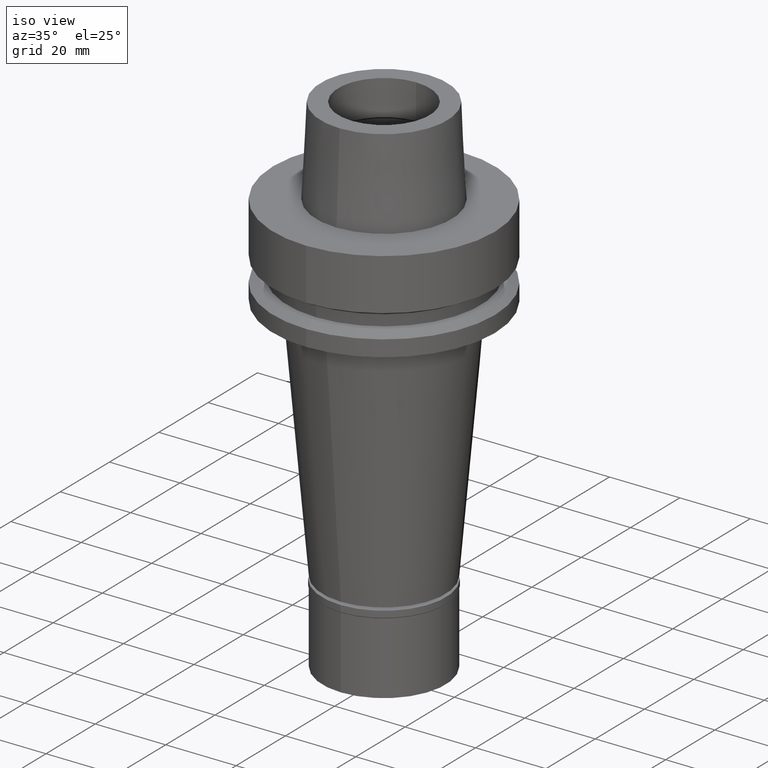
[diagram: clean part render]
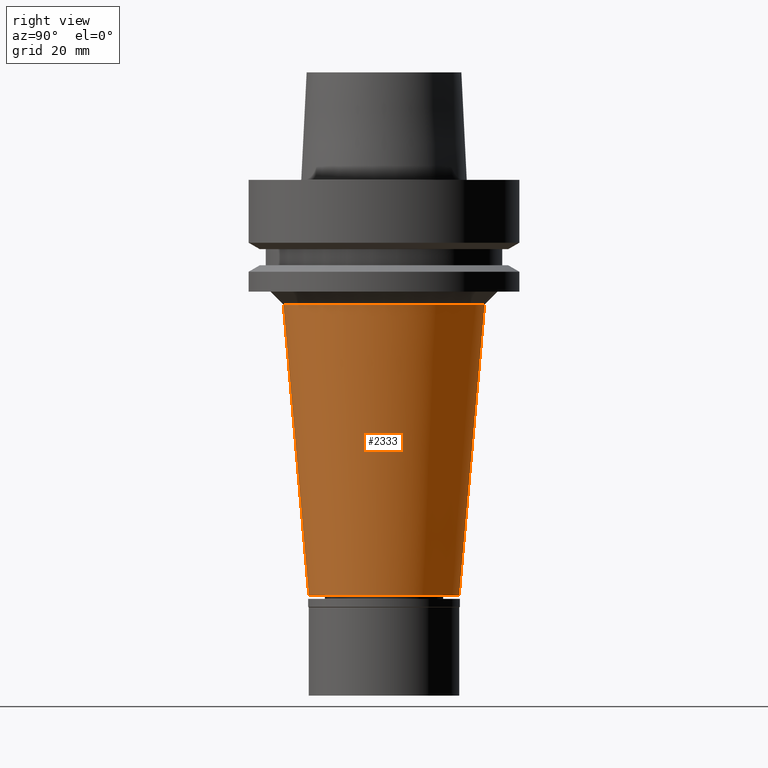
[diagram: tour spotlight — one face highlighted and labeled with its STEP entity id]
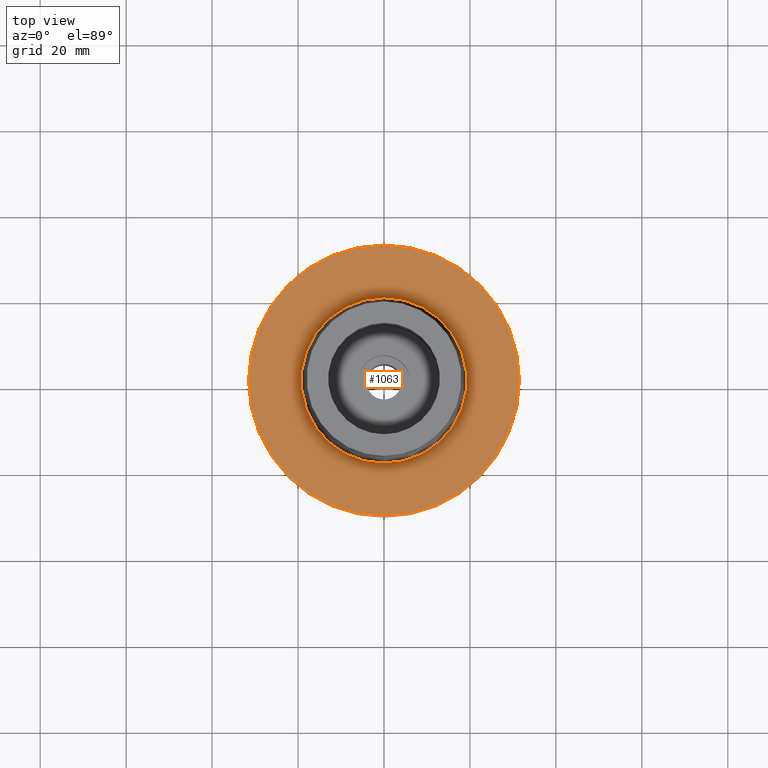
[diagram: tour spotlight — one face highlighted and labeled with its STEP entity id]
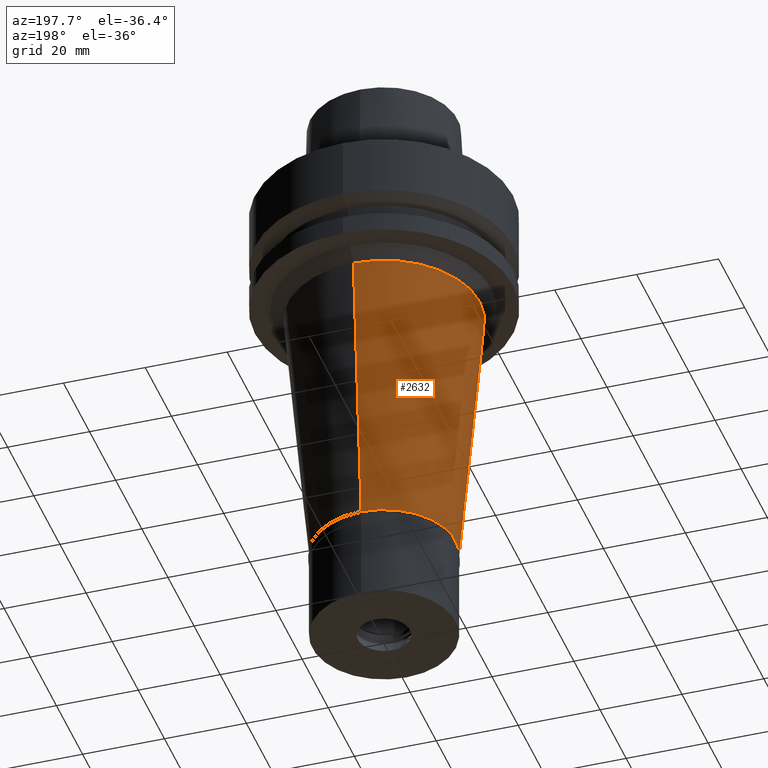
[diagram: tour spotlight — one face highlighted and labeled with its STEP entity id]
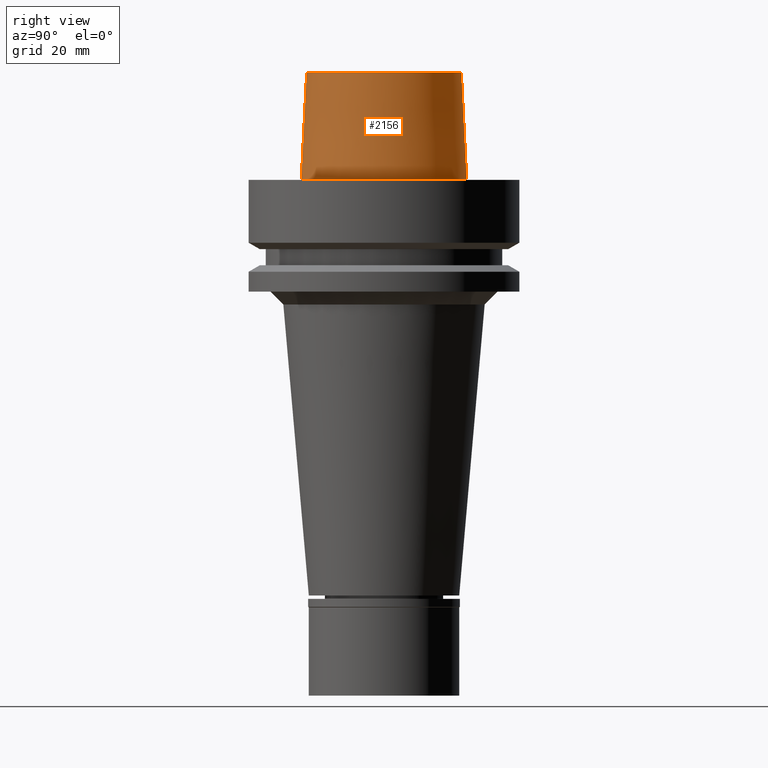
[diagram: tour spotlight — one face highlighted and labeled with its STEP entity id]
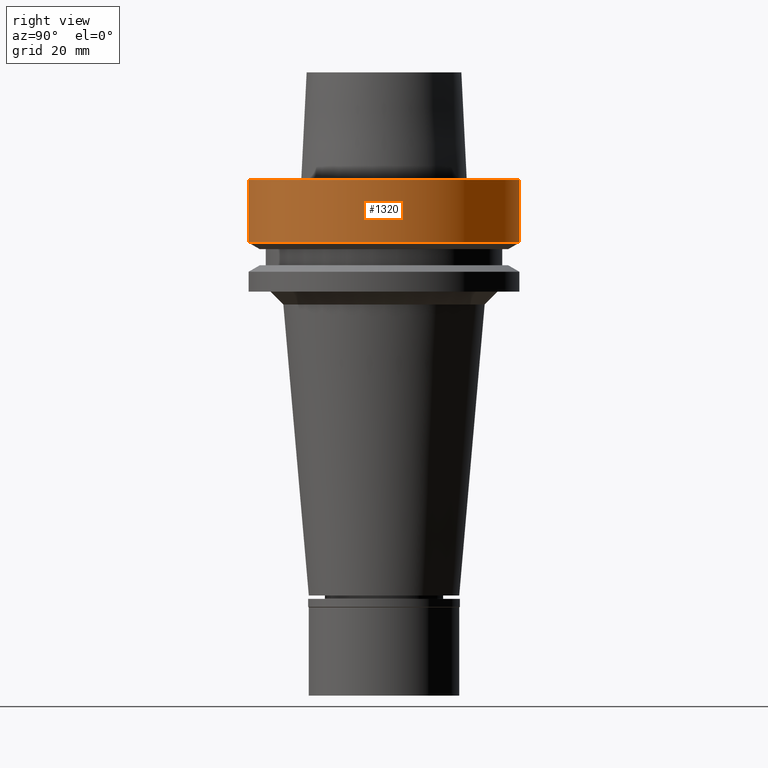
[diagram: tour spotlight — one face highlighted and labeled with its STEP entity id]
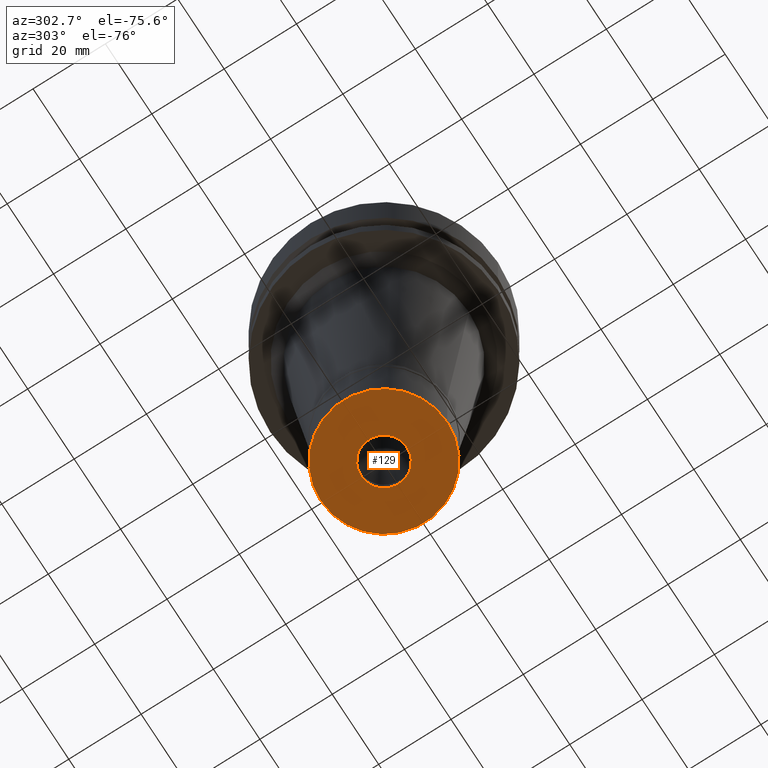
[diagram: tour spotlight — one face highlighted and labeled with its STEP entity id]
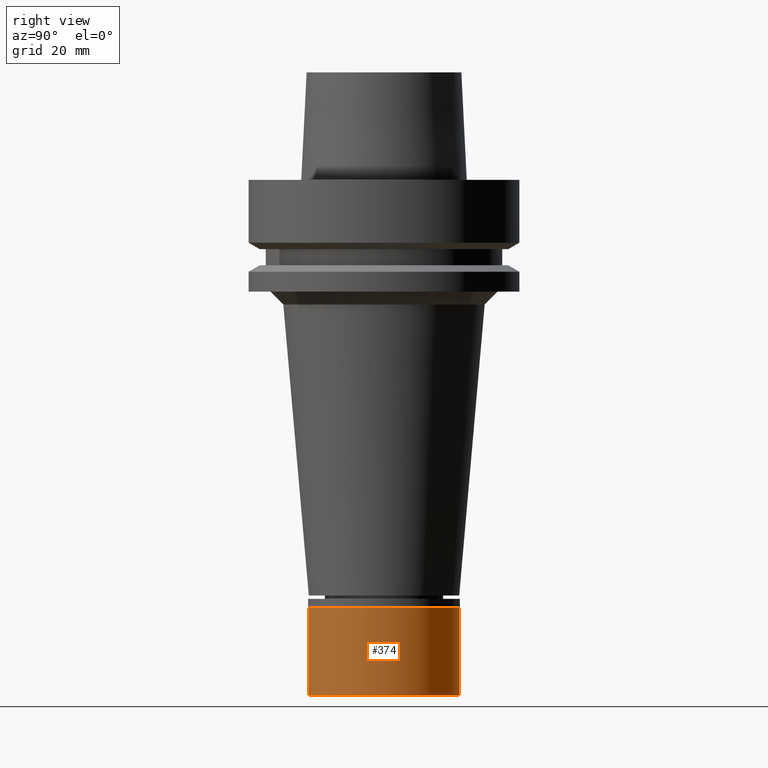
[diagram: tour spotlight — one face highlighted and labeled with its STEP entity id]
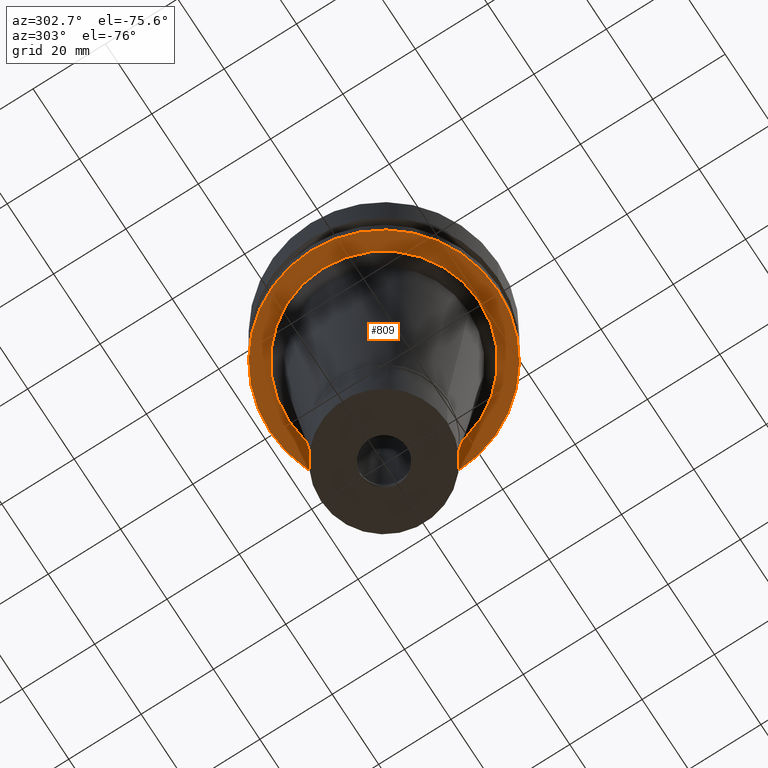
[diagram: tour spotlight — one face highlighted and labeled with its STEP entity id]
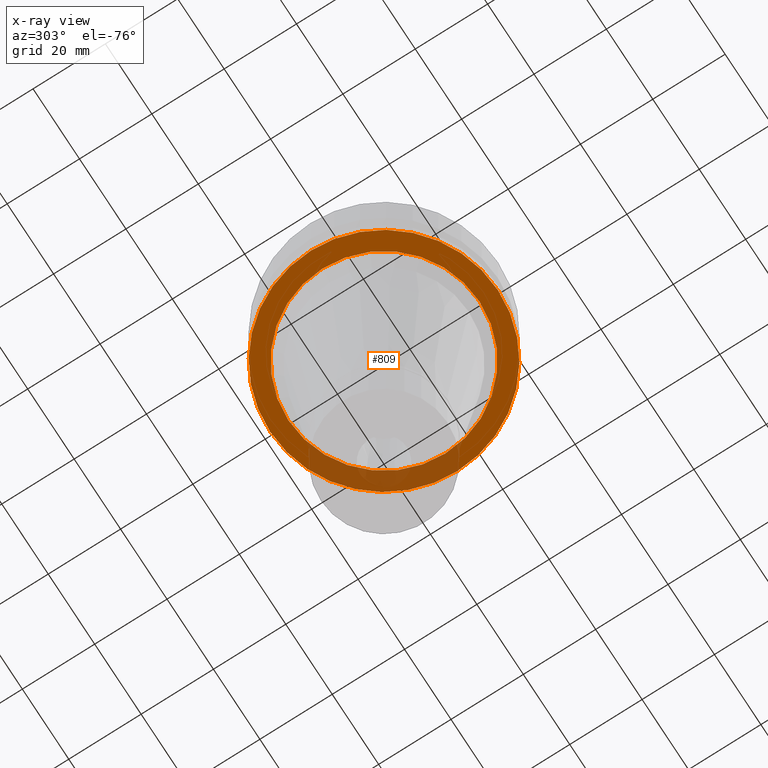
[diagram: x-ray of the same camera — body ghosted, this tour face saturated]
A machine part: a face-by-face anatomy tour. The part has 81 B-rep faces; the first image is the clean iso view, then the 8 largest visible faces are spotlighted one at a time (largest first), each with its STEP entity span.

Face 1 — right view, entity #2333. In plain terms, the highlighted conical surface has half-angle 5 deg.
Definition (entity closure, byte-faithful):
#21 = LINE ( 'NONE', #2617, #2186 ) ;
#22 = EDGE_CURVE ( 'NONE', #2372, #1533, #21, .T. ) ;
#80 = CARTESIAN_POINT ( 'NONE',  ( 0.0000000000000000000, 0.0000000000000000000, -62.85000000000000142 ) ) ;
#94 = CARTESIAN_POINT ( 'NONE',  ( 0.0000000000000000000, 0.0000000000000000000, -96.69999999999998863 ) ) ;
#110 = AXIS2_PLACEMENT_3D ( 'NONE', #2450, #1156, #1138 ) ;
#203 = EDGE_CURVE ( 'NONE', #1725, #1533, #720, .T. ) ;
#215 = ORIENTED_EDGE ( 'NONE', *, *, #1965, .T. ) ;
#283 = VERTEX_POINT ( 'NONE', #827 ) ;
#467 = CARTESIAN_POINT ( 'NONE',  ( 0.0000000000000000000, 23.42298252071000064, -29.00000000000000000 ) ) ;
#720 = CIRCLE ( 'NONE', #2335, 17.50000000000000000 ) ;
#777 = CARTESIAN_POINT ( 'NONE',  ( 0.0000000000000000000, -23.42298252071000064, -29.00000000000000000 ) ) ;
#816 = AXIS2_PLACEMENT_3D ( 'NONE', #80, #1376, #1821 ) ;
#827 = CARTESIAN_POINT ( 'NONE',  ( 0.0000000000000000000, -23.42298252071000064, -29.00000000000000000 ) ) ;
#1138 = DIRECTION ( 'NONE',  ( 0.0000000000000000000, -1.000000000000000000, 0.0000000000000000000 ) ) ;
#1156 = DIRECTION ( 'NONE',  ( 0.0000000000000000000, 0.0000000000000000000, 1.000000000000000000 ) ) ;
#1274 = EDGE_CURVE ( 'NONE', #283, #2372, #1867, .T. ) ;
#1322 = VECTOR ( 'NONE', #1898, 1000.000000000000000 ) ;
#1376 = DIRECTION ( 'NONE',  ( 0.0000000000000000000, 0.0000000000000000000, 1.000000000000000000 ) ) ;
#1447 = LINE ( 'NONE', #777, #1322 ) ;
#1483 = EDGE_LOOP ( 'NONE', ( #2423, #215, #2651, #2689 ) ) ;
#1521 = DIRECTION ( 'NONE',  ( 0.0000000000000000000, -0.08715574274770356011, -0.9961946980917415484 ) ) ;
#1533 = VERTEX_POINT ( 'NONE', #2726 ) ;
#1725 = VERTEX_POINT ( 'NONE', #1772 ) ;
#1772 = CARTESIAN_POINT ( 'NONE',  ( 0.0000000000000000000, -17.50000000000000000, -96.69999999999998863 ) ) ;
#1821 = DIRECTION ( 'NONE',  ( 0.0000000000000000000, 1.000000000000000000, 0.0000000000000000000 ) ) ;
#1859 = DIRECTION ( 'NONE',  ( 0.0000000000000000000, 0.0000000000000000000, 1.000000000000000000 ) ) ;
#1867 = CIRCLE ( 'NONE', #110, 23.42298252070000331 ) ;
#1898 = DIRECTION ( 'NONE',  ( 0.0000000000000000000, 0.08715574274770356011, -0.9961946980917415484 ) ) ;
#1965 = EDGE_CURVE ( 'NONE', #283, #1725, #1447, .T. ) ;
#2079 = DIRECTION ( 'NONE',  ( 0.0000000000000000000, -1.000000000000000000, 0.0000000000000000000 ) ) ;
#2186 = VECTOR ( 'NONE', #1521, 1000.000000000000000 ) ;
#2333 = ADVANCED_FACE ( 'NONE', ( #2664 ), #2746, .T. ) ;
#2335 = AXIS2_PLACEMENT_3D ( 'NONE', #94, #1859, #2079 ) ;
#2372 = VERTEX_POINT ( 'NONE', #467 ) ;
#2423 = ORIENTED_EDGE ( 'NONE', *, *, #1274, .F. ) ;
#2450 = CARTESIAN_POINT ( 'NONE',  ( 0.0000000000000000000, 0.0000000000000000000, -29.00000000000000000 ) ) ;
#2617 = CARTESIAN_POINT ( 'NONE',  ( 0.0000000000000000000, 23.42298252071000064, -29.00000000000000000 ) ) ;
#2651 = ORIENTED_EDGE ( 'NONE', *, *, #203, .T. ) ;
#2664 = FACE_OUTER_BOUND ( 'NONE', #1483, .T. ) ;
#2689 = ORIENTED_EDGE ( 'NONE', *, *, #22, .F. ) ;
#2726 = CARTESIAN_POINT ( 'NONE',  ( 0.0000000000000000000, 17.50000000000000000, -96.69999999999998863 ) ) ;
#2746 = CONICAL_SURFACE ( 'NONE', #816, 20.46149126035000165, 0.08726646259969973729 ) ;

Face 2 — top view, entity #1063. In plain terms, the highlighted planar face has unit normal (0, 0, 1).
Definition (entity closure, byte-faithful):
#51 = CIRCLE ( 'NONE', #2171, 19.24999954280000125 ) ;
#78 = CIRCLE ( 'NONE', #2339, 31.50000000000000000 ) ;
#226 = DIRECTION ( 'NONE',  ( 0.0000000000000000000, -1.000000000000000000, 0.0000000000000000000 ) ) ;
#269 = PLANE ( 'NONE',  #665 ) ;
#352 = CARTESIAN_POINT ( 'NONE',  ( 0.0000000000000000000, 0.0000000000000000000, 5.115907697473000027E-13 ) ) ;
#369 = EDGE_CURVE ( 'NONE', #2047, #2534, #2807, .T. ) ;
#431 = EDGE_CURVE ( 'NONE', #2534, #2047, #78, .T. ) ;
#443 = DIRECTION ( 'NONE',  ( 0.0000000000000000000, -1.000000000000000000, 0.0000000000000000000 ) ) ;
#464 = VERTEX_POINT ( 'NONE', #2308 ) ;
#501 = EDGE_CURVE ( 'NONE', #2710, #464, #1934, .T. ) ;
#547 = FACE_BOUND ( 'NONE', #1412, .T. ) ;
#564 = CARTESIAN_POINT ( 'NONE',  ( 0.0000000000000000000, 31.50000000000000000, 1.136868377215999875E-13 ) ) ;
#653 = ORIENTED_EDGE ( 'NONE', *, *, #369, .F. ) ;
#665 = AXIS2_PLACEMENT_3D ( 'NONE', #1669, #1633, #1413 ) ;
#729 = ORIENTED_EDGE ( 'NONE', *, *, #752, .F. ) ;
#752 = EDGE_CURVE ( 'NONE', #464, #2710, #51, .T. ) ;
#755 = DIRECTION ( 'NONE',  ( 0.0000000000000000000, 1.000000000000000000, 0.0000000000000000000 ) ) ;
#823 = ORIENTED_EDGE ( 'NONE', *, *, #501, .F. ) ;
#1002 = EDGE_LOOP ( 'NONE', ( #2755, #653 ) ) ;
#1063 = ADVANCED_FACE ( 'NONE', ( #1394, #547 ), #269, .T. ) ;
#1227 = DIRECTION ( 'NONE',  ( 0.0000000000000000000, 0.0000000000000000000, -1.000000000000000000 ) ) ;
#1394 = FACE_OUTER_BOUND ( 'NONE', #1002, .T. ) ;
#1412 = EDGE_LOOP ( 'NONE', ( #823, #729 ) ) ;
#1413 = DIRECTION ( 'NONE',  ( 1.000000000000000000, 0.0000000000000000000, 0.0000000000000000000 ) ) ;
#1425 = DIRECTION ( 'NONE',  ( 0.0000000000000000000, 0.0000000000000000000, 1.000000000000000000 ) ) ;
#1633 = DIRECTION ( 'NONE',  ( 0.0000000000000000000, 0.0000000000000000000, 1.000000000000000000 ) ) ;
#1669 = CARTESIAN_POINT ( 'NONE',  ( 0.0000000000000000000, 0.0000000000000000000, 0.0000000000000000000 ) ) ;
#1758 = DIRECTION ( 'NONE',  ( 0.0000000000000000000, 0.0000000000000000000, 1.000000000000000000 ) ) ;
#1770 = DIRECTION ( 'NONE',  ( 0.0000000000000000000, 0.0000000000000000000, -1.000000000000000000 ) ) ;
#1886 = AXIS2_PLACEMENT_3D ( 'NONE', #352, #1425, #2278 ) ;
#1934 = CIRCLE ( 'NONE', #1886, 19.24999954280000125 ) ;
#2047 = VERTEX_POINT ( 'NONE', #2409 ) ;
#2171 = AXIS2_PLACEMENT_3D ( 'NONE', #2841, #1758, #226 ) ;
#2234 = CARTESIAN_POINT ( 'NONE',  ( 0.0000000000000000000, 19.24999954280000125, 3.410605131648000255E-13 ) ) ;
#2278 = DIRECTION ( 'NONE',  ( 0.0000000000000000000, 1.000000000000000000, 0.0000000000000000000 ) ) ;
#2308 = CARTESIAN_POINT ( 'NONE',  ( 0.0000000000000000000, -19.24999954280000125, 3.410605131648000255E-13 ) ) ;
#2339 = AXIS2_PLACEMENT_3D ( 'NONE', #2730, #1227, #755 ) ;
#2409 = CARTESIAN_POINT ( 'NONE',  ( 0.0000000000000000000, -31.50000000000000000, 1.136868377215999875E-13 ) ) ;
#2522 = AXIS2_PLACEMENT_3D ( 'NONE', #2856, #1770, #443 ) ;
#2534 = VERTEX_POINT ( 'NONE', #564 ) ;
#2710 = VERTEX_POINT ( 'NONE', #2234 ) ;
#2730 = CARTESIAN_POINT ( 'NONE',  ( 0.0000000000000000000, 0.0000000000000000000, 1.136868377215999875E-13 ) ) ;
#2755 = ORIENTED_EDGE ( 'NONE', *, *, #431, .F. ) ;
#2807 = CIRCLE ( 'NONE', #2522, 31.50000000000000000 ) ;
#2841 = CARTESIAN_POINT ( 'NONE',  ( 0.0000000000000000000, 0.0000000000000000000, 5.115907697473000027E-13 ) ) ;
#2856 = CARTESIAN_POINT ( 'NONE',  ( 0.0000000000000000000, 0.0000000000000000000, 1.136868377215999875E-13 ) ) ;

Face 3 — auxiliary view, entity #2632. In plain terms, the highlighted conical surface has half-angle 5 deg.
Definition (entity closure, byte-faithful):
#21 = LINE ( 'NONE', #2617, #2186 ) ;
#22 = EDGE_CURVE ( 'NONE', #2372, #1533, #21, .T. ) ;
#55 = ORIENTED_EDGE ( 'NONE', *, *, #677, .T. ) ;
#185 = DIRECTION ( 'NONE',  ( 0.0000000000000000000, -1.000000000000000000, 0.0000000000000000000 ) ) ;
#266 = DIRECTION ( 'NONE',  ( 0.0000000000000000000, 1.000000000000000000, 0.0000000000000000000 ) ) ;
#283 = VERTEX_POINT ( 'NONE', #827 ) ;
#397 = DIRECTION ( 'NONE',  ( 0.0000000000000000000, 0.0000000000000000000, -1.000000000000000000 ) ) ;
#467 = CARTESIAN_POINT ( 'NONE',  ( 0.0000000000000000000, 23.42298252071000064, -29.00000000000000000 ) ) ;
#617 = CIRCLE ( 'NONE', #663, 17.50000000000000000 ) ;
#663 = AXIS2_PLACEMENT_3D ( 'NONE', #909, #1369, #266 ) ;
#677 = EDGE_CURVE ( 'NONE', #283, #2372, #2709, .T. ) ;
#777 = CARTESIAN_POINT ( 'NONE',  ( 0.0000000000000000000, -23.42298252071000064, -29.00000000000000000 ) ) ;
#817 = EDGE_CURVE ( 'NONE', #1533, #1725, #617, .T. ) ;
#827 = CARTESIAN_POINT ( 'NONE',  ( 0.0000000000000000000, -23.42298252071000064, -29.00000000000000000 ) ) ;
#834 = DIRECTION ( 'NONE',  ( 0.0000000000000000000, 0.0000000000000000000, 1.000000000000000000 ) ) ;
#909 = CARTESIAN_POINT ( 'NONE',  ( 0.0000000000000000000, 0.0000000000000000000, -96.69999999999998863 ) ) ;
#910 = DIRECTION ( 'NONE',  ( 0.0000000000000000000, 1.000000000000000000, 0.0000000000000000000 ) ) ;
#1322 = VECTOR ( 'NONE', #1898, 1000.000000000000000 ) ;
#1369 = DIRECTION ( 'NONE',  ( 0.0000000000000000000, 0.0000000000000000000, 1.000000000000000000 ) ) ;
#1447 = LINE ( 'NONE', #777, #1322 ) ;
#1504 = AXIS2_PLACEMENT_3D ( 'NONE', #2362, #834, #910 ) ;
#1521 = DIRECTION ( 'NONE',  ( 0.0000000000000000000, -0.08715574274770356011, -0.9961946980917415484 ) ) ;
#1533 = VERTEX_POINT ( 'NONE', #2726 ) ;
#1539 = ORIENTED_EDGE ( 'NONE', *, *, #817, .T. ) ;
#1626 = ORIENTED_EDGE ( 'NONE', *, *, #22, .T. ) ;
#1725 = VERTEX_POINT ( 'NONE', #1772 ) ;
#1772 = CARTESIAN_POINT ( 'NONE',  ( 0.0000000000000000000, -17.50000000000000000, -96.69999999999998863 ) ) ;
#1898 = DIRECTION ( 'NONE',  ( 0.0000000000000000000, 0.08715574274770356011, -0.9961946980917415484 ) ) ;
#1965 = EDGE_CURVE ( 'NONE', #283, #1725, #1447, .T. ) ;
#1983 = FACE_OUTER_BOUND ( 'NONE', #2093, .T. ) ;
#2048 = CONICAL_SURFACE ( 'NONE', #1504, 20.46149126035000165, 0.08726646259969973729 ) ;
#2093 = EDGE_LOOP ( 'NONE', ( #1539, #2346, #55, #1626 ) ) ;
#2186 = VECTOR ( 'NONE', #1521, 1000.000000000000000 ) ;
#2346 = ORIENTED_EDGE ( 'NONE', *, *, #1965, .F. ) ;
#2362 = CARTESIAN_POINT ( 'NONE',  ( 0.0000000000000000000, 0.0000000000000000000, -62.85000000000000142 ) ) ;
#2372 = VERTEX_POINT ( 'NONE', #467 ) ;
#2617 = CARTESIAN_POINT ( 'NONE',  ( 0.0000000000000000000, 23.42298252071000064, -29.00000000000000000 ) ) ;
#2632 = ADVANCED_FACE ( 'NONE', ( #1983 ), #2048, .T. ) ;
#2656 = AXIS2_PLACEMENT_3D ( 'NONE', #2827, #397, #185 ) ;
#2709 = CIRCLE ( 'NONE', #2656, 23.42298252071000064 ) ;
#2726 = CARTESIAN_POINT ( 'NONE',  ( 0.0000000000000000000, 17.50000000000000000, -96.69999999999998863 ) ) ;
#2827 = CARTESIAN_POINT ( 'NONE',  ( 0.0000000000000000000, 0.0000000000000000000, -29.00000000000000000 ) ) ;

Face 4 — right view, entity #2156. In plain terms, the highlighted conical surface has half-angle 2.862 deg.
Definition (entity closure, byte-faithful):
#51 = CIRCLE ( 'NONE', #2171, 19.24999954280000125 ) ;
#197 = ORIENTED_EDGE ( 'NONE', *, *, #2763, .F. ) ;
#198 = EDGE_CURVE ( 'NONE', #951, #2573, #1602, .T. ) ;
#226 = DIRECTION ( 'NONE',  ( 0.0000000000000000000, -1.000000000000000000, 0.0000000000000000000 ) ) ;
#308 = DIRECTION ( 'NONE',  ( 0.0000000000000000000, 0.0000000000000000000, -1.000000000000000000 ) ) ;
#464 = VERTEX_POINT ( 'NONE', #2308 ) ;
#593 = ORIENTED_EDGE ( 'NONE', *, *, #1136, .T. ) ;
#752 = EDGE_CURVE ( 'NONE', #464, #2710, #51, .T. ) ;
#951 = VERTEX_POINT ( 'NONE', #1862 ) ;
#987 = CARTESIAN_POINT ( 'NONE',  ( 0.0000000000000000000, 0.0000000000000000000, 25.00000000000000000 ) ) ;
#1052 = AXIS2_PLACEMENT_3D ( 'NONE', #1081, #1518, #1346 ) ;
#1081 = CARTESIAN_POINT ( 'NONE',  ( 0.0000000000000000000, 0.0000000000000000000, 12.50000000000000000 ) ) ;
#1136 = EDGE_CURVE ( 'NONE', #2573, #464, #2159, .T. ) ;
#1301 = FACE_OUTER_BOUND ( 'NONE', #2020, .T. ) ;
#1346 = DIRECTION ( 'NONE',  ( 0.0000000000000000000, -1.000000000000000000, 0.0000000000000000000 ) ) ;
#1373 = VECTOR ( 'NONE', #2247, 999.9999999999998863 ) ;
#1407 = DIRECTION ( 'NONE',  ( 0.0000000000000000000, 1.000000000000000000, 0.0000000000000000000 ) ) ;
#1518 = DIRECTION ( 'NONE',  ( 0.0000000000000000000, 0.0000000000000000000, -1.000000000000000000 ) ) ;
#1558 = ORIENTED_EDGE ( 'NONE', *, *, #752, .T. ) ;
#1602 = CIRCLE ( 'NONE', #1974, 18.00000182882000033 ) ;
#1715 = CARTESIAN_POINT ( 'NONE',  ( 0.0000000000000000000, -18.00000182882000033, 25.00000000000000000 ) ) ;
#1758 = DIRECTION ( 'NONE',  ( 0.0000000000000000000, 0.0000000000000000000, 1.000000000000000000 ) ) ;
#1816 = LINE ( 'NONE', #2532, #1373 ) ;
#1858 = ORIENTED_EDGE ( 'NONE', *, *, #198, .T. ) ;
#1862 = CARTESIAN_POINT ( 'NONE',  ( 0.0000000000000000000, 18.00000182882000033, 25.00000000000000000 ) ) ;
#1974 = AXIS2_PLACEMENT_3D ( 'NONE', #987, #308, #1407 ) ;
#2020 = EDGE_LOOP ( 'NONE', ( #1858, #593, #1558, #197 ) ) ;
#2136 = CONICAL_SURFACE ( 'NONE', #1052, 18.62500068580999724, 0.04995830450907576964 ) ;
#2156 = ADVANCED_FACE ( 'NONE', ( #1301 ), #2136, .T. ) ;
#2159 = LINE ( 'NONE', #1715, #2503 ) ;
#2171 = AXIS2_PLACEMENT_3D ( 'NONE', #2841, #1758, #226 ) ;
#2234 = CARTESIAN_POINT ( 'NONE',  ( 0.0000000000000000000, 19.24999954280000125, 3.410605131648000255E-13 ) ) ;
#2247 = DIRECTION ( 'NONE',  ( 0.0000000000000000000, 0.04993752584486958745, -0.9987523434327917338 ) ) ;
#2308 = CARTESIAN_POINT ( 'NONE',  ( 0.0000000000000000000, -19.24999954280000125, 3.410605131648000255E-13 ) ) ;
#2503 = VECTOR ( 'NONE', #2601, 999.9999999999998863 ) ;
#2532 = CARTESIAN_POINT ( 'NONE',  ( 0.0000000000000000000, 18.00000182882000033, 25.00000000000000000 ) ) ;
#2573 = VERTEX_POINT ( 'NONE', #2580 ) ;
#2580 = CARTESIAN_POINT ( 'NONE',  ( 0.0000000000000000000, -18.00000182882000033, 25.00000000000000000 ) ) ;
#2601 = DIRECTION ( 'NONE',  ( 0.0000000000000000000, -0.04993752584486958745, -0.9987523434327917338 ) ) ;
#2710 = VERTEX_POINT ( 'NONE', #2234 ) ;
#2763 = EDGE_CURVE ( 'NONE', #951, #2710, #1816, .T. ) ;
#2841 = CARTESIAN_POINT ( 'NONE',  ( 0.0000000000000000000, 0.0000000000000000000, 5.115907697473000027E-13 ) ) ;

Face 5 — right view, entity #1320. In plain terms, the highlighted cylindrical surface (partial cylindrical patch) has radius 31.5 mm, axis along (0, 0, 1).
Definition (entity closure, byte-faithful):
#34 = FACE_OUTER_BOUND ( 'NONE', #1808, .T. ) ;
#78 = CIRCLE ( 'NONE', #2339, 31.50000000000000000 ) ;
#157 = ORIENTED_EDGE ( 'NONE', *, *, #2148, .T. ) ;
#169 = EDGE_CURVE ( 'NONE', #548, #1441, #1927, .T. ) ;
#339 = AXIS2_PLACEMENT_3D ( 'NONE', #1116, #948, #659 ) ;
#431 = EDGE_CURVE ( 'NONE', #2534, #2047, #78, .T. ) ;
#445 = VECTOR ( 'NONE', #2168, 1000.000000000000000 ) ;
#465 = DIRECTION ( 'NONE',  ( 0.0000000000000000000, 4.130355870612999632E-14, -1.000000000000000000 ) ) ;
#548 = VERTEX_POINT ( 'NONE', #2717 ) ;
#564 = CARTESIAN_POINT ( 'NONE',  ( 0.0000000000000000000, 31.50000000000000000, 1.136868377215999875E-13 ) ) ;
#623 = CARTESIAN_POINT ( 'NONE',  ( 0.0000000000000000000, 31.50000000000000000, -14.62250092523999889 ) ) ;
#624 = CARTESIAN_POINT ( 'NONE',  ( 0.0000000000000000000, -31.50000000000000000, 7.579122514774000189E-14 ) ) ;
#637 = ORIENTED_EDGE ( 'NONE', *, *, #169, .T. ) ;
#659 = DIRECTION ( 'NONE',  ( 0.0000000000000000000, 1.000000000000000000, 0.0000000000000000000 ) ) ;
#701 = VECTOR ( 'NONE', #465, 1000.000000000000000 ) ;
#755 = DIRECTION ( 'NONE',  ( 0.0000000000000000000, 1.000000000000000000, 0.0000000000000000000 ) ) ;
#858 = EDGE_CURVE ( 'NONE', #2534, #1441, #2661, .T. ) ;
#948 = DIRECTION ( 'NONE',  ( 0.0000000000000000000, 0.0000000000000000000, 1.000000000000000000 ) ) ;
#974 = DIRECTION ( 'NONE',  ( 0.0000000000000000000, 0.0000000000000000000, 1.000000000000000000 ) ) ;
#1061 = AXIS2_PLACEMENT_3D ( 'NONE', #2549, #974, #2736 ) ;
#1116 = CARTESIAN_POINT ( 'NONE',  ( 0.0000000000000000000, 0.0000000000000000000, -120.2150000000000034 ) ) ;
#1227 = DIRECTION ( 'NONE',  ( 0.0000000000000000000, 0.0000000000000000000, -1.000000000000000000 ) ) ;
#1286 = LINE ( 'NONE', #624, #445 ) ;
#1320 = ADVANCED_FACE ( 'NONE', ( #34 ), #2026, .T. ) ;
#1441 = VERTEX_POINT ( 'NONE', #623 ) ;
#1808 = EDGE_LOOP ( 'NONE', ( #1913, #157, #637, #1985 ) ) ;
#1809 = CARTESIAN_POINT ( 'NONE',  ( 0.0000000000000000000, 31.50000000000000000, 7.579122514774000189E-14 ) ) ;
#1913 = ORIENTED_EDGE ( 'NONE', *, *, #431, .T. ) ;
#1927 = CIRCLE ( 'NONE', #1061, 31.50000000000000000 ) ;
#1985 = ORIENTED_EDGE ( 'NONE', *, *, #858, .F. ) ;
#2026 = CYLINDRICAL_SURFACE ( 'NONE', #339, 31.50000000000000000 ) ;
#2047 = VERTEX_POINT ( 'NONE', #2409 ) ;
#2148 = EDGE_CURVE ( 'NONE', #2047, #548, #1286, .T. ) ;
#2168 = DIRECTION ( 'NONE',  ( 0.0000000000000000000, -4.130355870612999632E-14, -1.000000000000000000 ) ) ;
#2339 = AXIS2_PLACEMENT_3D ( 'NONE', #2730, #1227, #755 ) ;
#2409 = CARTESIAN_POINT ( 'NONE',  ( 0.0000000000000000000, -31.50000000000000000, 1.136868377215999875E-13 ) ) ;
#2534 = VERTEX_POINT ( 'NONE', #564 ) ;
#2549 = CARTESIAN_POINT ( 'NONE',  ( 0.0000000000000000000, 0.0000000000000000000, -14.62250092523999889 ) ) ;
#2661 = LINE ( 'NONE', #1809, #701 ) ;
#2717 = CARTESIAN_POINT ( 'NONE',  ( 0.0000000000000000000, -31.50000000000000000, -14.62250092523999889 ) ) ;
#2730 = CARTESIAN_POINT ( 'NONE',  ( 0.0000000000000000000, 0.0000000000000000000, 1.136868377215999875E-13 ) ) ;
#2736 = DIRECTION ( 'NONE',  ( 0.0000000000000000000, -1.000000000000000000, 0.0000000000000000000 ) ) ;

Face 6 — auxiliary view, entity #129. In plain terms, the highlighted planar face has unit normal (0, 0, -1).
Definition (entity closure, byte-faithful):
#129 = ADVANCED_FACE ( 'NONE', ( #2493, #2266 ), #518, .T. ) ;
#140 = EDGE_LOOP ( 'NONE', ( #186, #1405 ) ) ;
#176 = CARTESIAN_POINT ( 'NONE',  ( 0.0000000000000000000, 0.0000000000000000000, -22.50000000000000000 ) ) ;
#186 = ORIENTED_EDGE ( 'NONE', *, *, #1146, .F. ) ;
#196 = CARTESIAN_POINT ( 'NONE',  ( 0.0000000000000000000, -17.50000000000000000, -22.50000000000000000 ) ) ;
#394 = AXIS2_PLACEMENT_3D ( 'NONE', #176, #1665, #1887 ) ;
#453 = CARTESIAN_POINT ( 'NONE',  ( 0.0000000000000000000, 0.0000000000000000000, -22.50000000000000000 ) ) ;
#489 = CIRCLE ( 'NONE', #2797, 6.349999999998999556 ) ;
#518 = PLANE ( 'NONE',  #2282 ) ;
#713 = VERTEX_POINT ( 'NONE', #1295 ) ;
#796 = ORIENTED_EDGE ( 'NONE', *, *, #2031, .F. ) ;
#821 = CARTESIAN_POINT ( 'NONE',  ( 0.0000000000000000000, 0.0000000000000000000, -22.50000000000000000 ) ) ;
#837 = CARTESIAN_POINT ( 'NONE',  ( 0.0000000000000000000, 0.0000000000000000000, -22.50000000000000000 ) ) ;
#992 = DIRECTION ( 'NONE',  ( 0.0000000000000000000, 0.0000000000000000000, 1.000000000000000000 ) ) ;
#1146 = EDGE_CURVE ( 'NONE', #1647, #1187, #2083, .T. ) ;
#1187 = VERTEX_POINT ( 'NONE', #196 ) ;
#1223 = DIRECTION ( 'NONE',  ( 0.0000000000000000000, 0.0000000000000000000, -1.000000000000000000 ) ) ;
#1277 = AXIS2_PLACEMENT_3D ( 'NONE', #821, #1520, #2369 ) ;
#1293 = EDGE_LOOP ( 'NONE', ( #796, #1603 ) ) ;
#1295 = CARTESIAN_POINT ( 'NONE',  ( 0.0000000000000000000, -6.349999999998999556, -22.50000000000000000 ) ) ;
#1405 = ORIENTED_EDGE ( 'NONE', *, *, #1949, .F. ) ;
#1520 = DIRECTION ( 'NONE',  ( 0.0000000000000000000, 0.0000000000000000000, 1.000000000000000000 ) ) ;
#1588 = EDGE_CURVE ( 'NONE', #713, #2512, #2221, .T. ) ;
#1603 = ORIENTED_EDGE ( 'NONE', *, *, #1588, .F. ) ;
#1647 = VERTEX_POINT ( 'NONE', #2677 ) ;
#1665 = DIRECTION ( 'NONE',  ( 0.0000000000000000000, 0.0000000000000000000, -1.000000000000000000 ) ) ;
#1691 = CIRCLE ( 'NONE', #2039, 17.50000000000000000 ) ;
#1887 = DIRECTION ( 'NONE',  ( 0.0000000000000000000, -1.000000000000000000, 0.0000000000000000000 ) ) ;
#1949 = EDGE_CURVE ( 'NONE', #1187, #1647, #1691, .T. ) ;
#2031 = EDGE_CURVE ( 'NONE', #2512, #713, #489, .T. ) ;
#2039 = AXIS2_PLACEMENT_3D ( 'NONE', #837, #992, #2584 ) ;
#2083 = CIRCLE ( 'NONE', #1277, 17.50000000000000000 ) ;
#2086 = DIRECTION ( 'NONE',  ( 0.0000000000000000000, -1.000000000000000000, 0.0000000000000000000 ) ) ;
#2221 = CIRCLE ( 'NONE', #394, 6.349999999998999556 ) ;
#2266 = FACE_BOUND ( 'NONE', #1293, .T. ) ;
#2282 = AXIS2_PLACEMENT_3D ( 'NONE', #2680, #1223, #2086 ) ;
#2369 = DIRECTION ( 'NONE',  ( 0.0000000000000000000, 1.000000000000000000, 0.0000000000000000000 ) ) ;
#2493 = FACE_OUTER_BOUND ( 'NONE', #140, .T. ) ;
#2512 = VERTEX_POINT ( 'NONE', #2775 ) ;
#2584 = DIRECTION ( 'NONE',  ( 0.0000000000000000000, -1.000000000000000000, 0.0000000000000000000 ) ) ;
#2624 = DIRECTION ( 'NONE',  ( 0.0000000000000000000, 0.0000000000000000000, -1.000000000000000000 ) ) ;
#2677 = CARTESIAN_POINT ( 'NONE',  ( 0.0000000000000000000, 17.50000000000000000, -22.50000000000000000 ) ) ;
#2680 = CARTESIAN_POINT ( 'NONE',  ( 0.0000000000000000000, 0.0000000000000000000, -22.50000000000000000 ) ) ;
#2775 = CARTESIAN_POINT ( 'NONE',  ( 0.0000000000000000000, 6.349999999998999556, -22.50000000000000000 ) ) ;
#2797 = AXIS2_PLACEMENT_3D ( 'NONE', #453, #2624, #2834 ) ;
#2834 = DIRECTION ( 'NONE',  ( 0.0000000000000000000, 1.000000000000000000, 0.0000000000000000000 ) ) ;

Face 7 — right view, entity #374. In plain terms, the highlighted cylindrical surface (partial cylindrical patch) has radius 17.5 mm, axis along (0, 0, -1).
Definition (entity closure, byte-faithful):
#4 = ORIENTED_EDGE ( 'NONE', *, *, #334, .F. ) ;
#117 = CARTESIAN_POINT ( 'NONE',  ( 0.0000000000000000000, 17.50000000000000000, -2.000000000000000000 ) ) ;
#132 = VERTEX_POINT ( 'NONE', #117 ) ;
#196 = CARTESIAN_POINT ( 'NONE',  ( 0.0000000000000000000, -17.50000000000000000, -22.50000000000000000 ) ) ;
#246 = EDGE_LOOP ( 'NONE', ( #615, #1958, #2237, #4 ) ) ;
#334 = EDGE_CURVE ( 'NONE', #132, #1647, #2174, .T. ) ;
#374 = ADVANCED_FACE ( 'NONE', ( #2629 ), #660, .T. ) ;
#503 = CARTESIAN_POINT ( 'NONE',  ( 0.0000000000000000000, -17.50000000000000000, -2.000000000000000000 ) ) ;
#615 = ORIENTED_EDGE ( 'NONE', *, *, #1358, .T. ) ;
#660 = CYLINDRICAL_SURFACE ( 'NONE', #781, 17.50000000000000000 ) ;
#724 = DIRECTION ( 'NONE',  ( 0.0000000000000000000, 1.000000000000000000, 0.0000000000000000000 ) ) ;
#781 = AXIS2_PLACEMENT_3D ( 'NONE', #1536, #2864, #2416 ) ;
#837 = CARTESIAN_POINT ( 'NONE',  ( 0.0000000000000000000, 0.0000000000000000000, -22.50000000000000000 ) ) ;
#947 = AXIS2_PLACEMENT_3D ( 'NONE', #2701, #2509, #724 ) ;
#992 = DIRECTION ( 'NONE',  ( 0.0000000000000000000, 0.0000000000000000000, 1.000000000000000000 ) ) ;
#1187 = VERTEX_POINT ( 'NONE', #196 ) ;
#1358 = EDGE_CURVE ( 'NONE', #132, #2248, #2173, .T. ) ;
#1536 = CARTESIAN_POINT ( 'NONE',  ( 0.0000000000000000000, 0.0000000000000000000, 0.0000000000000000000 ) ) ;
#1575 = CARTESIAN_POINT ( 'NONE',  ( 0.0000000000000000000, -17.50000000000000000, -2.000000000000000000 ) ) ;
#1647 = VERTEX_POINT ( 'NONE', #2677 ) ;
#1691 = CIRCLE ( 'NONE', #2039, 17.50000000000000000 ) ;
#1949 = EDGE_CURVE ( 'NONE', #1187, #1647, #1691, .T. ) ;
#1958 = ORIENTED_EDGE ( 'NONE', *, *, #2206, .T. ) ;
#2036 = LINE ( 'NONE', #503, #2510 ) ;
#2039 = AXIS2_PLACEMENT_3D ( 'NONE', #837, #992, #2584 ) ;
#2145 = VECTOR ( 'NONE', #2232, 1000.000000000000000 ) ;
#2173 = CIRCLE ( 'NONE', #947, 17.50000000000000000 ) ;
#2174 = LINE ( 'NONE', #2640, #2145 ) ;
#2206 = EDGE_CURVE ( 'NONE', #2248, #1187, #2036, .T. ) ;
#2232 = DIRECTION ( 'NONE',  ( 0.0000000000000000000, 0.0000000000000000000, -1.000000000000000000 ) ) ;
#2237 = ORIENTED_EDGE ( 'NONE', *, *, #1949, .T. ) ;
#2248 = VERTEX_POINT ( 'NONE', #1575 ) ;
#2416 = DIRECTION ( 'NONE',  ( 0.0000000000000000000, -1.000000000000000000, 0.0000000000000000000 ) ) ;
#2509 = DIRECTION ( 'NONE',  ( 0.0000000000000000000, 0.0000000000000000000, -1.000000000000000000 ) ) ;
#2510 = VECTOR ( 'NONE', #2678, 1000.000000000000000 ) ;
#2584 = DIRECTION ( 'NONE',  ( 0.0000000000000000000, -1.000000000000000000, 0.0000000000000000000 ) ) ;
#2629 = FACE_OUTER_BOUND ( 'NONE', #246, .T. ) ;
#2640 = CARTESIAN_POINT ( 'NONE',  ( 0.0000000000000000000, 17.50000000000000000, -2.000000000000000000 ) ) ;
#2677 = CARTESIAN_POINT ( 'NONE',  ( 0.0000000000000000000, 17.50000000000000000, -22.50000000000000000 ) ) ;
#2678 = DIRECTION ( 'NONE',  ( 0.0000000000000000000, 0.0000000000000000000, -1.000000000000000000 ) ) ;
#2701 = CARTESIAN_POINT ( 'NONE',  ( 0.0000000000000000000, 0.0000000000000000000, -2.000000000000000000 ) ) ;
#2864 = DIRECTION ( 'NONE',  ( 0.0000000000000000000, 0.0000000000000000000, -1.000000000000000000 ) ) ;

Face 8 — auxiliary view, entity #809. An x-ray twin of the same camera follows (body ghosted, this face saturated) — the face is partly hidden behind the body. In plain terms, the highlighted planar face has unit normal (0, 0, 1).
Definition (entity closure, byte-faithful):
#9 = FACE_BOUND ( 'NONE', #370, .T. ) ;
#57 = CARTESIAN_POINT ( 'NONE',  ( 0.0000000000000000000, -31.50000000000000000, -26.00000000000000000 ) ) ;
#182 = CARTESIAN_POINT ( 'NONE',  ( 0.0000000000000000000, 26.42298252071000064, -26.00000000000000000 ) ) ;
#235 = DIRECTION ( 'NONE',  ( 1.000000000000000000, 0.0000000000000000000, 0.0000000000000000000 ) ) ;
#315 = DIRECTION ( 'NONE',  ( 0.0000000000000000000, 0.0000000000000000000, -1.000000000000000000 ) ) ;
#370 = EDGE_LOOP ( 'NONE', ( #1368, #2010 ) ) ;
#385 = ORIENTED_EDGE ( 'NONE', *, *, #2399, .F. ) ;
#438 = CIRCLE ( 'NONE', #1641, 26.42298252071000064 ) ;
#486 = DIRECTION ( 'NONE',  ( 0.0000000000000000000, 0.0000000000000000000, 1.000000000000000000 ) ) ;
#582 = AXIS2_PLACEMENT_3D ( 'NONE', #1906, #1475, #2723 ) ;
#681 = CARTESIAN_POINT ( 'NONE',  ( 0.0000000000000000000, -26.42298252071000064, -26.00000000000000000 ) ) ;
#714 = CIRCLE ( 'NONE', #582, 31.50000000000000000 ) ;
#809 = ADVANCED_FACE ( 'NONE', ( #2672, #9 ), #1570, .F. ) ;
#814 = EDGE_CURVE ( 'NONE', #1028, #958, #2124, .T. ) ;
#857 = CIRCLE ( 'NONE', #2316, 26.42298252071000064 ) ;
#958 = VERTEX_POINT ( 'NONE', #2035 ) ;
#1028 = VERTEX_POINT ( 'NONE', #57 ) ;
#1044 = AXIS2_PLACEMENT_3D ( 'NONE', #1583, #486, #1130 ) ;
#1130 = DIRECTION ( 'NONE',  ( 0.0000000000000000000, -1.000000000000000000, 0.0000000000000000000 ) ) ;
#1300 = EDGE_CURVE ( 'NONE', #2120, #1721, #857, .T. ) ;
#1342 = CARTESIAN_POINT ( 'NONE',  ( 0.0000000000000000000, 0.0000000000000000000, -26.00000000000000000 ) ) ;
#1368 = ORIENTED_EDGE ( 'NONE', *, *, #1300, .F. ) ;
#1393 = EDGE_CURVE ( 'NONE', #1721, #2120, #438, .T. ) ;
#1397 = AXIS2_PLACEMENT_3D ( 'NONE', #1342, #2203, #235 ) ;
#1430 = ORIENTED_EDGE ( 'NONE', *, *, #814, .F. ) ;
#1475 = DIRECTION ( 'NONE',  ( 0.0000000000000000000, 0.0000000000000000000, 1.000000000000000000 ) ) ;
#1570 = PLANE ( 'NONE',  #1397 ) ;
#1583 = CARTESIAN_POINT ( 'NONE',  ( 0.0000000000000000000, 0.0000000000000000000, -26.00000000000000000 ) ) ;
#1641 = AXIS2_PLACEMENT_3D ( 'NONE', #2041, #315, #2714 ) ;
#1721 = VERTEX_POINT ( 'NONE', #681 ) ;
#1793 = CARTESIAN_POINT ( 'NONE',  ( 0.0000000000000000000, 0.0000000000000000000, -26.00000000000000000 ) ) ;
#1906 = CARTESIAN_POINT ( 'NONE',  ( 0.0000000000000000000, 0.0000000000000000000, -26.00000000000000000 ) ) ;
#2010 = ORIENTED_EDGE ( 'NONE', *, *, #1393, .F. ) ;
#2035 = CARTESIAN_POINT ( 'NONE',  ( 0.0000000000000000000, 31.50000000000000000, -26.00000000000000000 ) ) ;
#2041 = CARTESIAN_POINT ( 'NONE',  ( 0.0000000000000000000, 0.0000000000000000000, -26.00000000000000000 ) ) ;
#2120 = VERTEX_POINT ( 'NONE', #182 ) ;
#2124 = CIRCLE ( 'NONE', #1044, 31.50000000000000000 ) ;
#2187 = DIRECTION ( 'NONE',  ( 0.0000000000000000000, 1.000000000000000000, 0.0000000000000000000 ) ) ;
#2203 = DIRECTION ( 'NONE',  ( 0.0000000000000000000, 0.0000000000000000000, 1.000000000000000000 ) ) ;
#2316 = AXIS2_PLACEMENT_3D ( 'NONE', #1793, #2667, #2187 ) ;
#2399 = EDGE_CURVE ( 'NONE', #958, #1028, #714, .T. ) ;
#2667 = DIRECTION ( 'NONE',  ( 0.0000000000000000000, 0.0000000000000000000, -1.000000000000000000 ) ) ;
#2672 = FACE_OUTER_BOUND ( 'NONE', #2674, .T. ) ;
#2674 = EDGE_LOOP ( 'NONE', ( #385, #1430 ) ) ;
#2714 = DIRECTION ( 'NONE',  ( 0.0000000000000000000, -1.000000000000000000, 0.0000000000000000000 ) ) ;
#2723 = DIRECTION ( 'NONE',  ( 0.0000000000000000000, 1.000000000000000000, 0.0000000000000000000 ) ) ;